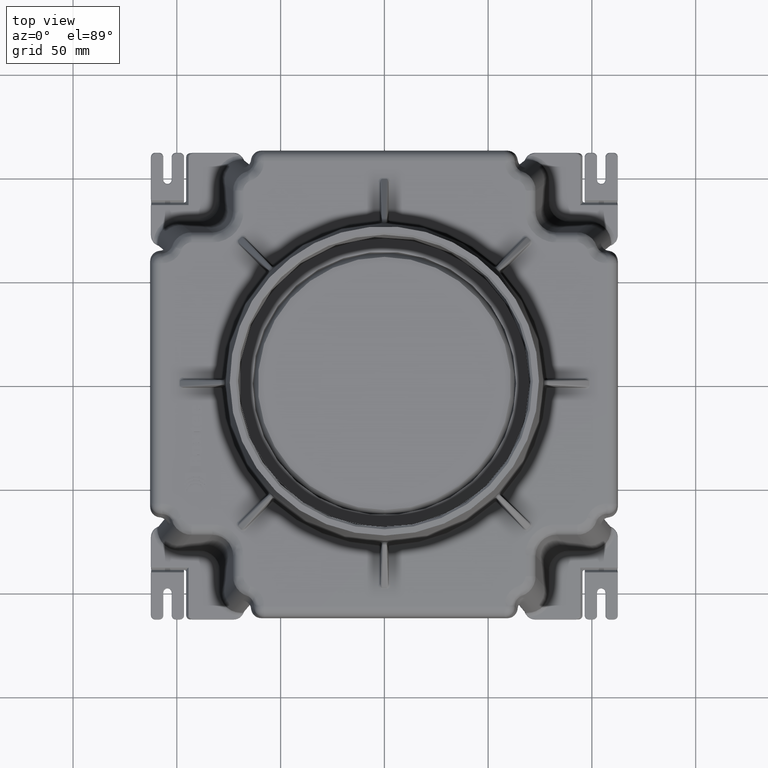
[diagram: clean part render]
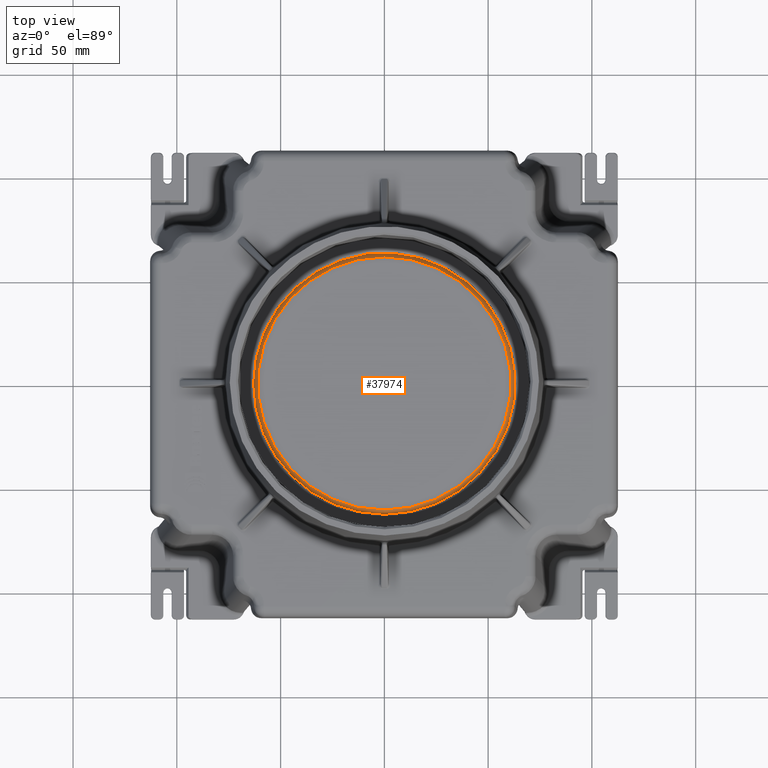
[diagram: same view with one face highlighted and labeled with its STEP entity id]
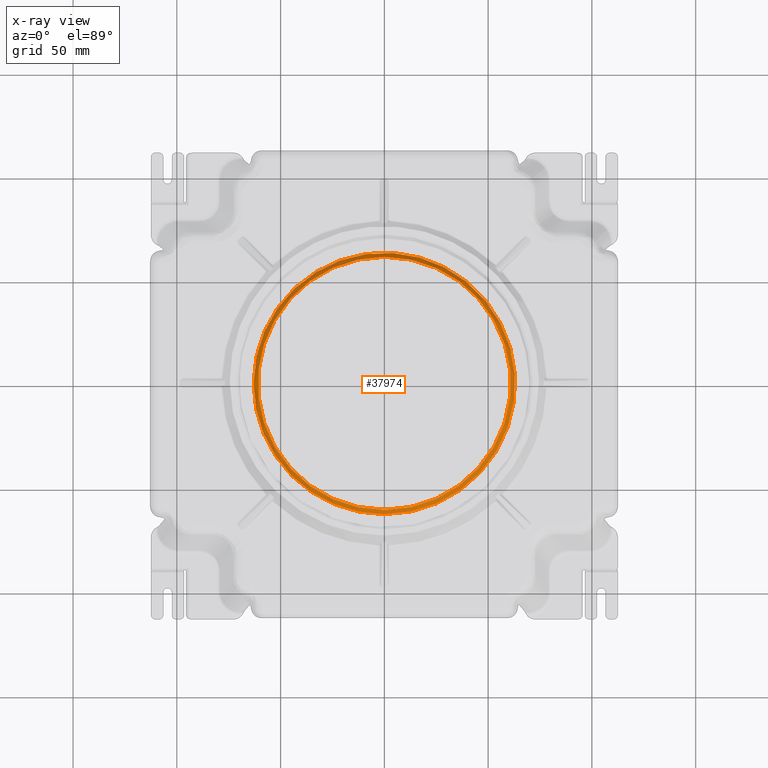
[diagram: x-ray of the same camera — body ghosted, the highlighted face saturated]
A machine part, top view. The second image highlights one B-rep face of the part: STEP entity #37974.
The next image is the same camera in x-ray: the body ghosted, the highlighted face saturated — about 0% of this face is hidden behind the body in this view.
In plain terms, the highlighted conical surface has half-angle 32.33 deg.
Its self-contained STEP definition (entity closure, byte-faithful):
#37943=CARTESIAN_POINT('',(0.0,-60.999999999999986,-2.000000000000015));
#37944=VERTEX_POINT('',#37943);
#37945=CARTESIAN_POINT('',(0.0,0.0,-2.000000000000015));
#37946=DIRECTION('',(0.0,0.0,1.0));
#37947=DIRECTION('',(0.0,-1.0,0.0));
#37948=AXIS2_PLACEMENT_3D('',#37945,#37946,#37947);
#37949=CIRCLE('',#37948,60.999999999999986);
#37950=EDGE_CURVE('',#37944,#37944,#37949,.T.);
#37955=CARTESIAN_POINT('',(0.0,0.0,-3.975000000000017));
#37956=DIRECTION('',(0.0,0.0,-1.0));
#37957=DIRECTION('',(0.0,-1.0,0.0));
#37958=AXIS2_PLACEMENT_3D('',#37955,#37956,#37957);
#37959=CONICAL_SURFACE('',#37958,62.25,32.330185735050428);
#37960=CARTESIAN_POINT('',(-62.963691676566896,-7.710828E-015,-5.102632848975711));
#37961=VERTEX_POINT('',#37960);
#37962=CARTESIAN_POINT('',(0.0,0.0,-5.102632848975711));
#37963=DIRECTION('',(0.0,0.0,1.0));
#37964=DIRECTION('',(1.0,0.0,0.0));
#37965=AXIS2_PLACEMENT_3D('',#37962,#37963,#37964);
#37966=CIRCLE('',#37965,62.963691676566896);
#37967=EDGE_CURVE('',#37961,#37961,#37966,.F.);
#37968=ORIENTED_EDGE('',*,*,#37967,.F.);
#37969=EDGE_LOOP('',(#37968));
#37970=FACE_OUTER_BOUND('',#37969,.T.);
#37971=ORIENTED_EDGE('',*,*,#37950,.F.);
#37972=EDGE_LOOP('',(#37971));
#37973=FACE_BOUND('',#37972,.T.);
#37974=ADVANCED_FACE('',(#37970,#37973),#37959,.T.);